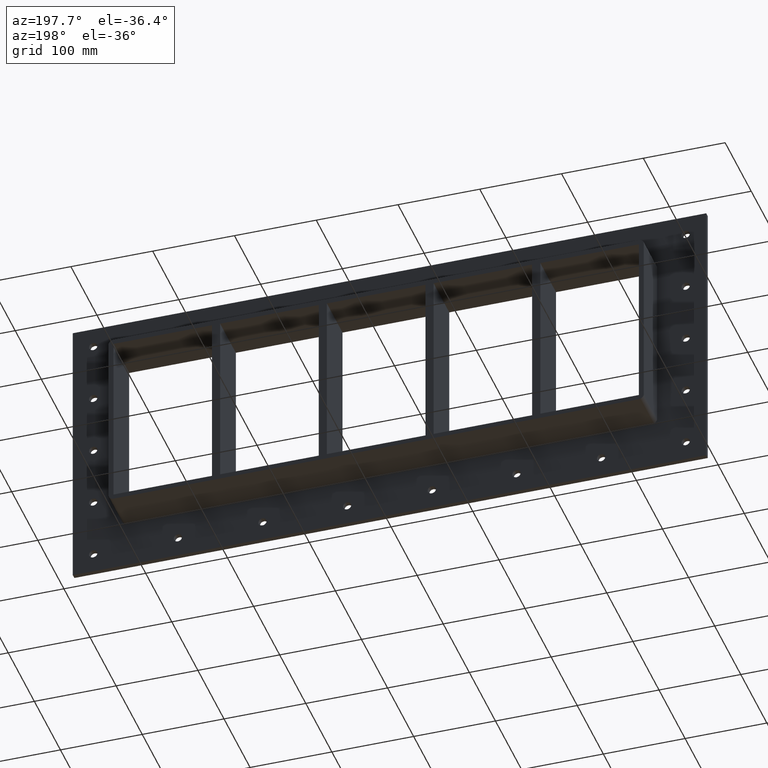
[diagram: clean part render]
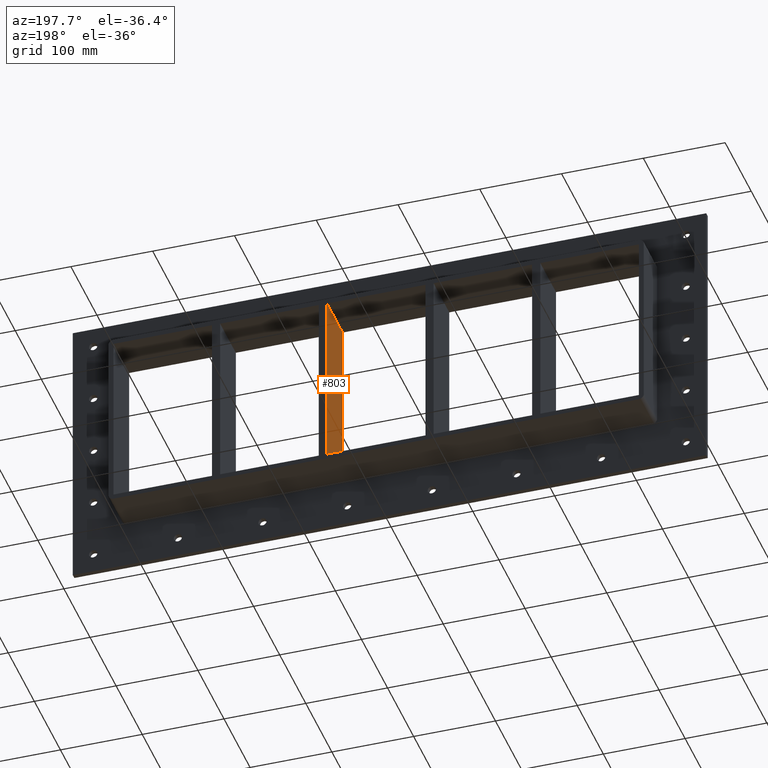
[diagram: same view with one face highlighted and labeled with its STEP entity id]
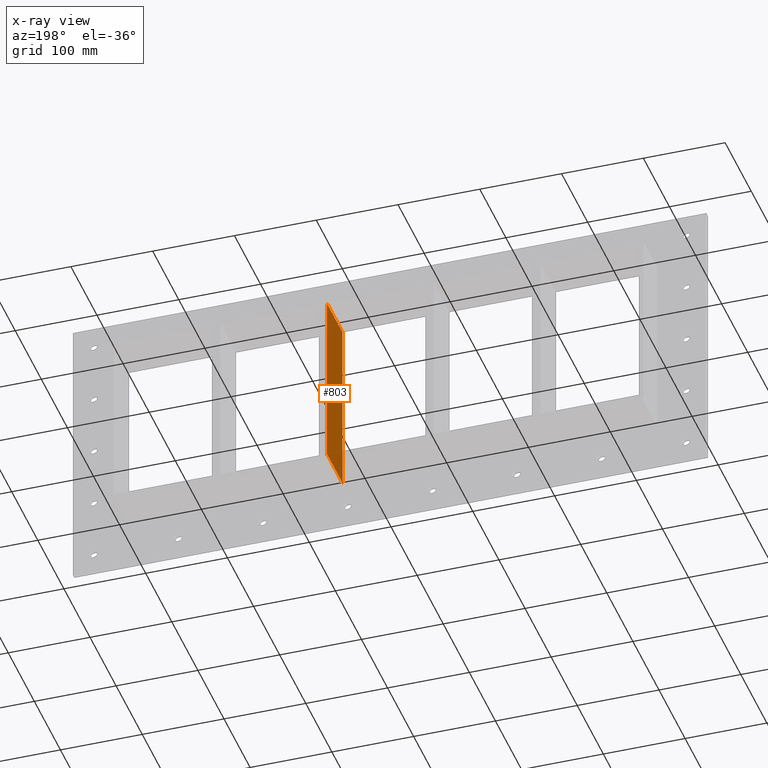
[diagram: x-ray of the same camera — body ghosted, the highlighted face saturated]
A machine part, auxiliary view. The second image highlights one B-rep face of the part: STEP entity #803.
The next image is the same camera in x-ray: the body ghosted, the highlighted face saturated — about 0% of this face is hidden behind the body in this view.
In plain terms, the highlighted planar face has unit normal (-1, 0, 0).
Its self-contained STEP definition (entity closure, byte-faithful):
#764=CARTESIAN_POINT('',(60.249999999998707,-3.0,-108.99999999999999));
#765=DIRECTION('',(-1.0,0.0,0.0));
#766=DIRECTION('',(0.0,0.0,1.0));
#767=AXIS2_PLACEMENT_3D('',#764,#765,#766);
#768=PLANE('',#767);
#769=CARTESIAN_POINT('',(60.249999999998707,-3.0,-108.99999999999999));
#770=VERTEX_POINT('',#769);
#771=CARTESIAN_POINT('',(60.249999999998671,-3.0,109.00000000000003));
#772=VERTEX_POINT('',#771);
#773=CARTESIAN_POINT('',(60.249999999998707,-3.0,-108.99999999999999));
#774=DIRECTION('',(0.0,0.0,1.0));
#775=VECTOR('',#774,218.0);
#776=LINE('',#773,#775);
#777=EDGE_CURVE('',#770,#772,#776,.T.);
#778=ORIENTED_EDGE('',*,*,#777,.T.);
#779=CARTESIAN_POINT('',(60.249999999998671,57.0,109.00000000000003));
#780=VERTEX_POINT('',#779);
#781=CARTESIAN_POINT('',(60.24999999999865,57.000000000000007,109.00000000000003));
#782=DIRECTION('',(0.0,-1.0,0.0));
#783=VECTOR('',#782,60.000000000000007);
#784=LINE('',#781,#783);
#785=EDGE_CURVE('',#780,#772,#784,.T.);
#786=ORIENTED_EDGE('',*,*,#785,.F.);
#787=CARTESIAN_POINT('',(60.249999999998707,57.0,-108.99999999999999));
#788=VERTEX_POINT('',#787);
#789=CARTESIAN_POINT('',(60.249999999998707,57.0,-108.99999999999999));
#790=DIRECTION('',(0.0,0.0,1.0));
#791=VECTOR('',#790,218.0);
#792=LINE('',#789,#791);
#793=EDGE_CURVE('',#788,#780,#792,.T.);
#794=ORIENTED_EDGE('',*,*,#793,.F.);
#795=CARTESIAN_POINT('',(60.249999999998707,-3.0,-108.99999999999999));
#796=DIRECTION('',(0.0,1.0,0.0));
#797=VECTOR('',#796,60.000000000000007);
#798=LINE('',#795,#797);
#799=EDGE_CURVE('',#770,#788,#798,.T.);
#800=ORIENTED_EDGE('',*,*,#799,.F.);
#801=EDGE_LOOP('',(#778,#786,#794,#800));
#802=FACE_OUTER_BOUND('',#801,.T.);
#803=ADVANCED_FACE('',(#802),#768,.T.);